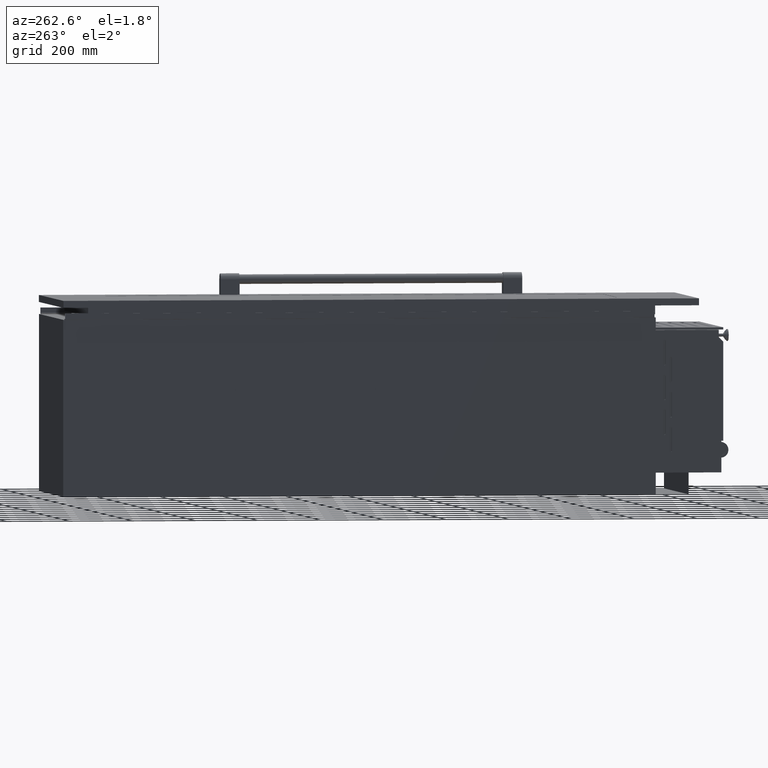
[diagram: clean part render]
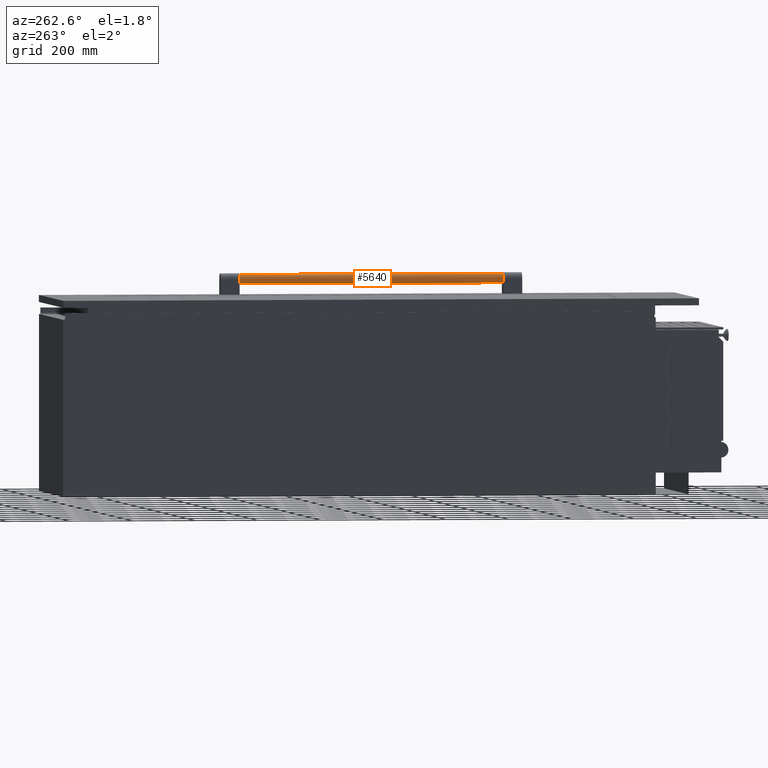
[diagram: same view with one face highlighted and labeled with its STEP entity id]
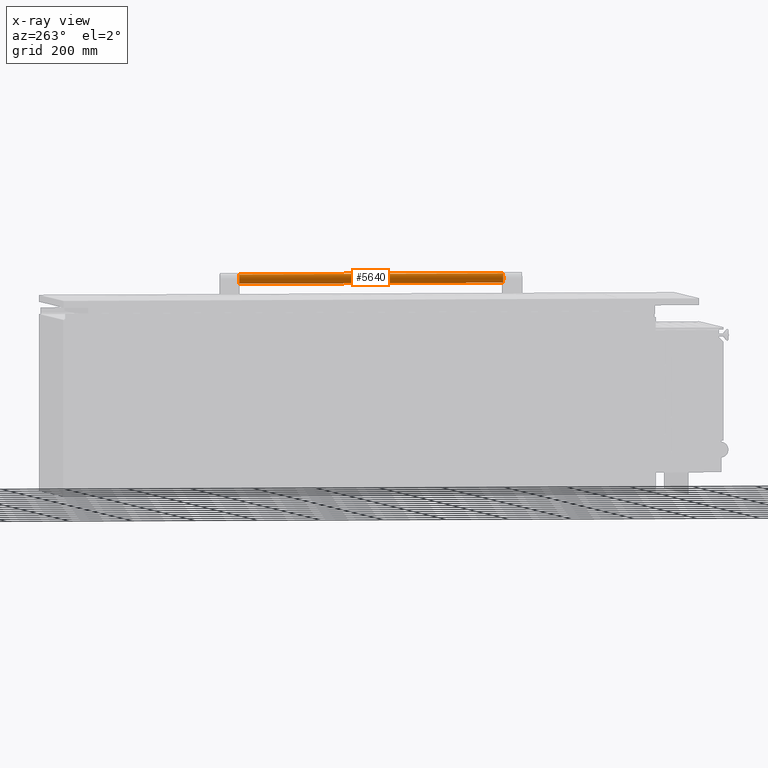
[diagram: x-ray of the same camera — body ghosted, the highlighted face saturated]
A machine part, auxiliary view. The second image highlights one B-rep face of the part: STEP entity #5640.
The next image is the same camera in x-ray: the body ghosted, the highlighted face saturated — about 0% of this face is hidden behind the body in this view.
In plain terms, the highlighted cylindrical surface (edge-blend (fillet) strip) has radius 15 mm, axis along (0, -1, -0).
Its self-contained STEP definition (entity closure, byte-faithful):
#453 = CARTESIAN_POINT ( 'NONE',  ( 848.9999993500003900, 420.0000000000001100, 404.0000000000000600 ) ) ;
#727 = VECTOR ( 'NONE', #8547, 1000.000000000000000 ) ;
#813 = LINE ( 'NONE', #2158, #7881 ) ;
#1073 = VERTEX_POINT ( 'NONE', #10122 ) ;
#1086 = ORIENTED_EDGE ( 'NONE', *, *, #3867, .T. ) ;
#1107 = LINE ( 'NONE', #453, #727 ) ;
#1525 = CIRCLE ( 'NONE', #3898, 15.00000000000001400 ) ;
#2158 = CARTESIAN_POINT ( 'NONE',  ( 848.9999993500003900, 420.0000000000001100, 374.0000000000000600 ) ) ;
#3433 = DIRECTION ( 'NONE',  ( 0.0000000000000000000, 0.0000000000000000000, -1.000000000000000000 ) ) ;
#3531 = EDGE_CURVE ( 'NONE', #1073, #8168, #3712, .T. ) ;
#3548 = DIRECTION ( 'NONE',  ( 0.0000000000000000000, 0.0000000000000000000, -1.000000000000000000 ) ) ;
#3712 = CIRCLE ( 'NONE', #8054, 15.00000000000001400 ) ;
#3867 = EDGE_CURVE ( 'NONE', #1073, #6520, #813, .T. ) ;
#3898 = AXIS2_PLACEMENT_3D ( 'NONE', #8374, #9850, #3548 ) ;
#4621 = ORIENTED_EDGE ( 'NONE', *, *, #4918, .F. ) ;
#4918 = EDGE_CURVE ( 'NONE', #9277, #6520, #1525, .T. ) ;
#5072 = ORIENTED_EDGE ( 'NONE', *, *, #3531, .F. ) ;
#5509 = FACE_OUTER_BOUND ( 'NONE', #7564, .T. ) ;
#5564 = DIRECTION ( 'NONE',  ( 0.0000000000000000000, -1.000000000000000000, -0.0000000000000000000 ) ) ;
#5640 = ADVANCED_FACE ( 'NONE', ( #5509 ), #7704, .T. ) ;
#5785 = AXIS2_PLACEMENT_3D ( 'NONE', #6640, #8157, #3433 ) ;
#6201 = ORIENTED_EDGE ( 'NONE', *, *, #9332, .F. ) ;
#6348 = DIRECTION ( 'NONE',  ( 0.0000000000000000000, 0.0000000000000000000, 1.000000000000000000 ) ) ;
#6520 = VERTEX_POINT ( 'NONE', #10294 ) ;
#6545 = CARTESIAN_POINT ( 'NONE',  ( 848.9999993500003900, -420.0000000000000000, 404.0000000000000600 ) ) ;
#6640 = CARTESIAN_POINT ( 'NONE',  ( 848.9999993500003900, 420.0000000000001100, 389.0000000000000600 ) ) ;
#7564 = EDGE_LOOP ( 'NONE', ( #6201, #5072, #1086, #4621 ) ) ;
#7667 = DIRECTION ( 'NONE',  ( 0.0000000000000000000, 1.000000000000000000, 0.0000000000000000000 ) ) ;
#7704 = CYLINDRICAL_SURFACE ( 'NONE', #5785, 15.00000000000001400 ) ;
#7881 = VECTOR ( 'NONE', #5564, 1000.000000000000000 ) ;
#8054 = AXIS2_PLACEMENT_3D ( 'NONE', #9224, #7667, #6348 ) ;
#8157 = DIRECTION ( 'NONE',  ( 0.0000000000000000000, -1.000000000000000000, -0.0000000000000000000 ) ) ;
#8168 = VERTEX_POINT ( 'NONE', #9954 ) ;
#8374 = CARTESIAN_POINT ( 'NONE',  ( 848.9999993500003900, -420.0000000000000000, 389.0000000000000600 ) ) ;
#8547 = DIRECTION ( 'NONE',  ( 0.0000000000000000000, -1.000000000000000000, -0.0000000000000000000 ) ) ;
#9224 = CARTESIAN_POINT ( 'NONE',  ( 848.9999993500003900, 420.0000000000001100, 389.0000000000000600 ) ) ;
#9277 = VERTEX_POINT ( 'NONE', #6545 ) ;
#9332 = EDGE_CURVE ( 'NONE', #8168, #9277, #1107, .T. ) ;
#9850 = DIRECTION ( 'NONE',  ( 0.0000000000000000000, -1.000000000000000000, 0.0000000000000000000 ) ) ;
#9954 = CARTESIAN_POINT ( 'NONE',  ( 848.9999993500003900, 420.0000000000001100, 404.0000000000000600 ) ) ;
#10122 = CARTESIAN_POINT ( 'NONE',  ( 848.9999993500003900, 420.0000000000001100, 374.0000000000000600 ) ) ;
#10294 = CARTESIAN_POINT ( 'NONE',  ( 848.9999993500003900, -420.0000000000000000, 374.0000000000000600 ) ) ;